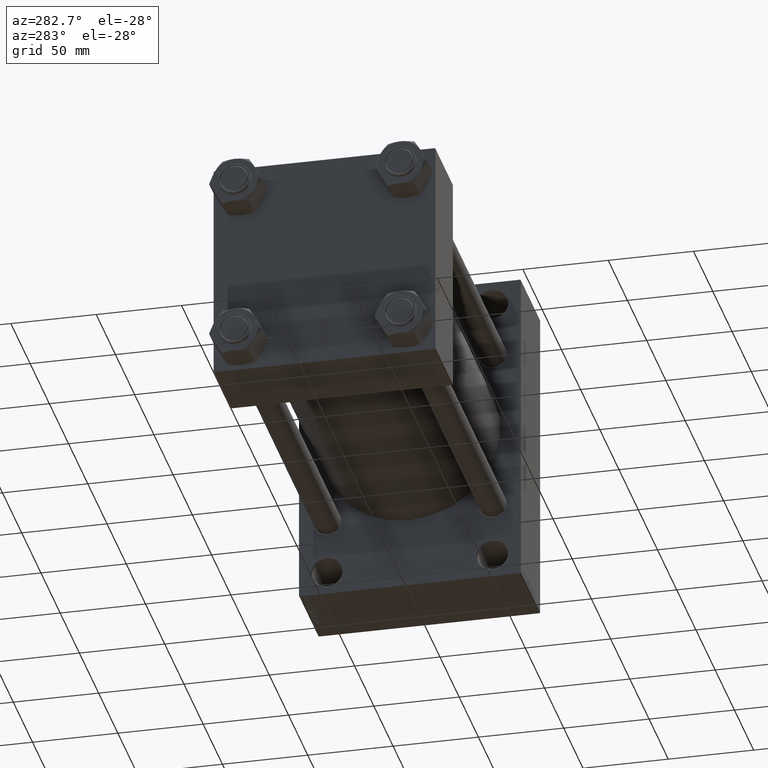
[diagram: clean part render]
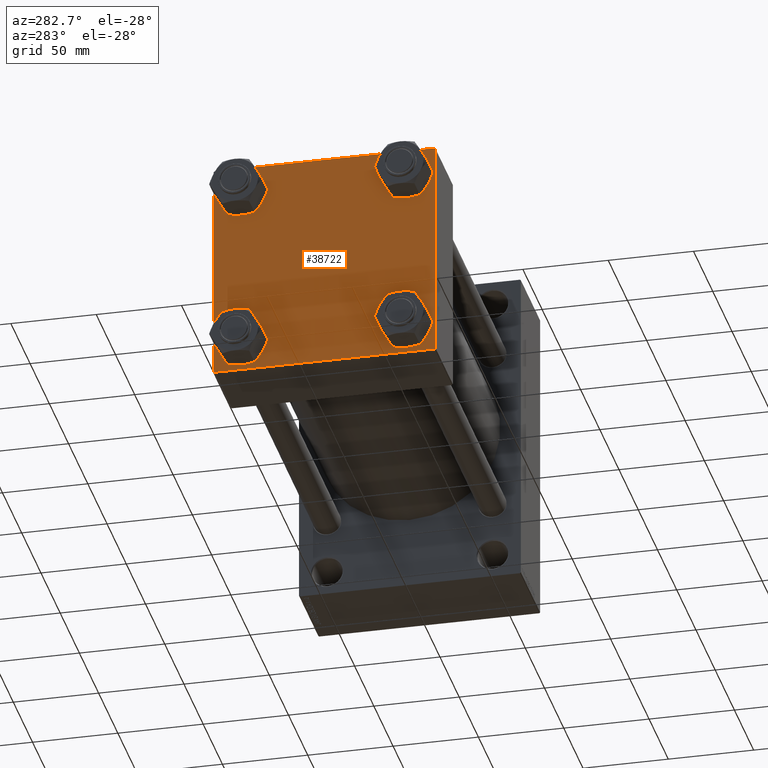
[diagram: same view with one face highlighted and labeled with its STEP entity id]
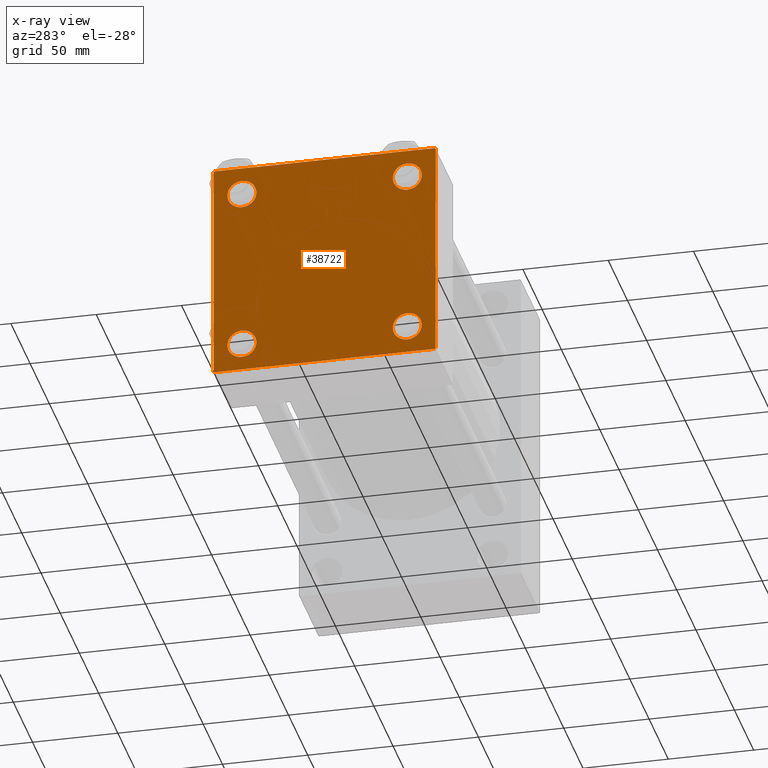
[diagram: x-ray of the same camera — body ghosted, the highlighted face saturated]
A machine part, auxiliary view. The second image highlights one B-rep face of the part: STEP entity #38722.
The next image is the same camera in x-ray: the body ghosted, the highlighted face saturated — about 0% of this face is hidden behind the body in this view.
In plain terms, the highlighted planar face has unit normal (-1, 0, 0).
Its self-contained STEP definition (entity closure, byte-faithful):
#100 = VERTEX_POINT ( 'NONE', #7290 ) ;
#126 = CARTESIAN_POINT ( 'NONE',  ( 0.000000000000000000, -48.44999999999999574, -48.45000000000003126 ) ) ;
#771 = DIRECTION ( 'NONE',  ( 0.000000000000000000, 0.000000000000000000, 1.000000000000000000 ) ) ;
#1217 = AXIS2_PLACEMENT_3D ( 'NONE', #6793, #14257, #21265 ) ;
#1656 = CIRCLE ( 'NONE', #18564, 8.500000000000007105 ) ;
#2460 = VERTEX_POINT ( 'NONE', #37429 ) ;
#2597 = ORIENTED_EDGE ( 'NONE', *, *, #33445, .T. ) ;
#2628 = EDGE_LOOP ( 'NONE', ( #27123, #4950 ) ) ;
#3049 = DIRECTION ( 'NONE',  ( 1.000000000000000000, -0.000000000000000000, 0.000000000000000000 ) ) ;
#3469 = FACE_BOUND ( 'NONE', #2628, .T. ) ;
#3698 = EDGE_CURVE ( 'NONE', #14409, #25266, #27313, .T. ) ;
#3805 = EDGE_CURVE ( 'NONE', #40340, #34486, #10114, .T. ) ;
#3814 = EDGE_CURVE ( 'NONE', #14409, #20359, #25520, .T. ) ;
#4240 = EDGE_CURVE ( 'NONE', #8730, #11387, #12992, .T. ) ;
#4527 = CARTESIAN_POINT ( 'NONE',  ( 0.000000000000000000, -65.00000000000000000, 64.50000000000000000 ) ) ;
#4950 = ORIENTED_EDGE ( 'NONE', *, *, #14866, .T. ) ;
#6104 = VERTEX_POINT ( 'NONE', #47192 ) ;
#6146 = VECTOR ( 'NONE', #9454, 1000.000000000000000 ) ;
#6349 = EDGE_LOOP ( 'NONE', ( #10600, #16194 ) ) ;
#6656 = EDGE_CURVE ( 'NONE', #25266, #28633, #10836, .T. ) ;
#6684 = DIRECTION ( 'NONE',  ( 1.000000000000000000, -0.000000000000000000, 0.000000000000000000 ) ) ;
#6793 = CARTESIAN_POINT ( 'NONE',  ( 0.000000000000000000, 48.45000000000000995, 48.45000000000001705 ) ) ;
#7024 = AXIS2_PLACEMENT_3D ( 'NONE', #12124, #23440, #771 ) ;
#7189 = CARTESIAN_POINT ( 'NONE',  ( 0.000000000000000000, 65.00000000000000000, 65.00000000000001421 ) ) ;
#7290 = CARTESIAN_POINT ( 'NONE',  ( 0.000000000000000000, -65.00000000000000000, -64.49999999999991473 ) ) ;
#7695 = DIRECTION ( 'NONE',  ( 0.000000000000000000, 0.000000000000000000, 1.000000000000000000 ) ) ;
#8238 = DIRECTION ( 'NONE',  ( -0.000000000000000000, 0.7071067811865672237, 0.7071067811865279218 ) ) ;
#8730 = VERTEX_POINT ( 'NONE', #18579 ) ;
#8956 = DIRECTION ( 'NONE',  ( -0.000000000000000000, -0.7071067811865474617, -0.7071067811865474617 ) ) ;
#9454 = DIRECTION ( 'NONE',  ( 0.000000000000000000, 0.000000000000000000, -1.000000000000000000 ) ) ;
#9731 = EDGE_CURVE ( 'NONE', #6104, #2460, #23163, .T. ) ;
#10114 = LINE ( 'NONE', #10817, #44595 ) ;
#10131 = CARTESIAN_POINT ( 'NONE',  ( 0.000000000000000000, -64.75000000000176215, -64.74999999999816680 ) ) ;
#10208 = EDGE_CURVE ( 'NONE', #21952, #30631, #1656, .T. ) ;
#10586 = CARTESIAN_POINT ( 'NONE',  ( 0.000000000000000000, 64.74999999999998579, 64.74999999999998579 ) ) ;
#10600 = ORIENTED_EDGE ( 'NONE', *, *, #9731, .T. ) ;
#10715 = FACE_BOUND ( 'NONE', #27650, .T. ) ;
#10817 = CARTESIAN_POINT ( 'NONE',  ( 0.000000000000000000, 65.00000000000000000, -64.99999999999998579 ) ) ;
#10836 = LINE ( 'NONE', #14675, #46995 ) ;
#10890 = VECTOR ( 'NONE', #41165, 1000.000000000000000 ) ;
#11220 = ORIENTED_EDGE ( 'NONE', *, *, #3814, .F. ) ;
#11359 = CIRCLE ( 'NONE', #39855, 8.500000000000007105 ) ;
#11387 = VERTEX_POINT ( 'NONE', #28604 ) ;
#11462 = VECTOR ( 'NONE', #43405, 1000.000000000000000 ) ;
#11687 = VECTOR ( 'NONE', #8956, 1000.000000000000114 ) ;
#12124 = CARTESIAN_POINT ( 'NONE',  ( 0.000000000000000000, 48.45000000000000995, -48.45000000000001705 ) ) ;
#12203 = ORIENTED_EDGE ( 'NONE', *, *, #6656, .T. ) ;
#12330 = CARTESIAN_POINT ( 'NONE',  ( 0.000000000000000000, 64.74999999999997158, -64.74999999999997158 ) ) ;
#12992 = CIRCLE ( 'NONE', #29934, 8.500000000000007105 ) ;
#13071 = VERTEX_POINT ( 'NONE', #30787 ) ;
#13210 = EDGE_CURVE ( 'NONE', #13071, #27701, #19299, .T. ) ;
#13280 = CARTESIAN_POINT ( 'NONE',  ( 0.000000000000000000, -48.44999999999999574, 48.45000000000003126 ) ) ;
#13960 = DIRECTION ( 'NONE',  ( 0.000000000000000000, -1.000000000000000000, -1.067522139062650425E-16 ) ) ;
#14147 = CARTESIAN_POINT ( 'NONE',  ( 0.000000000000000000, -48.44999999999999574, -48.45000000000003126 ) ) ;
#14257 = DIRECTION ( 'NONE',  ( 1.000000000000000000, -0.000000000000000000, 0.000000000000000000 ) ) ;
#14409 = VERTEX_POINT ( 'NONE', #44108 ) ;
#14616 = CARTESIAN_POINT ( 'NONE',  ( 0.000000000000000000, -64.49999999999997158, 65.00000000000000000 ) ) ;
#14675 = CARTESIAN_POINT ( 'NONE',  ( 0.000000000000000000, 65.00000000000000000, 65.00000000000001421 ) ) ;
#14866 = EDGE_CURVE ( 'NONE', #11387, #8730, #15523, .T. ) ;
#15522 = EDGE_CURVE ( 'NONE', #27701, #13071, #11359, .T. ) ;
#15523 = CIRCLE ( 'NONE', #31697, 8.500000000000007105 ) ;
#15931 = DIRECTION ( 'NONE',  ( 0.000000000000000000, 0.000000000000000000, 1.000000000000000000 ) ) ;
#16194 = ORIENTED_EDGE ( 'NONE', *, *, #26751, .T. ) ;
#16884 = DIRECTION ( 'NONE',  ( 1.000000000000000000, -0.000000000000000000, 0.000000000000000000 ) ) ;
#17007 = EDGE_CURVE ( 'NONE', #30631, #21952, #24318, .T. ) ;
#17377 = LINE ( 'NONE', #24853, #6146 ) ;
#17498 = VERTEX_POINT ( 'NONE', #4527 ) ;
#18169 = FACE_OUTER_BOUND ( 'NONE', #24559, .T. ) ;
#18539 = CARTESIAN_POINT ( 'NONE',  ( 0.000000000000000000, 48.45000000000000995, 48.45000000000001705 ) ) ;
#18564 = AXIS2_PLACEMENT_3D ( 'NONE', #18539, #44617, #7695 ) ;
#18579 = CARTESIAN_POINT ( 'NONE',  ( 0.000000000000000000, -48.44999999999999574, -39.95000000000001705 ) ) ;
#19299 = CIRCLE ( 'NONE', #7024, 8.500000000000007105 ) ;
#20036 = DIRECTION ( 'NONE',  ( 0.000000000000000000, 0.000000000000000000, 1.000000000000000000 ) ) ;
#20359 = VERTEX_POINT ( 'NONE', #14616 ) ;
#21174 = CARTESIAN_POINT ( 'NONE',  ( 0.000000000000000000, 48.45000000000000995, 56.95000000000002416 ) ) ;
#21265 = DIRECTION ( 'NONE',  ( 0.000000000000000000, 0.000000000000000000, 1.000000000000000000 ) ) ;
#21700 = DIRECTION ( 'NONE',  ( 0.000000000000000000, 0.000000000000000000, -1.000000000000000000 ) ) ;
#21952 = VERTEX_POINT ( 'NONE', #21174 ) ;
#22254 = DIRECTION ( 'NONE',  ( -0.000000000000000000, 0.000000000000000000, 1.000000000000000000 ) ) ;
#22453 = ORIENTED_EDGE ( 'NONE', *, *, #30713, .F. ) ;
#22934 = AXIS2_PLACEMENT_3D ( 'NONE', #13280, #16884, #20036 ) ;
#23163 = CIRCLE ( 'NONE', #45549, 8.500000000000007105 ) ;
#23305 = VECTOR ( 'NONE', #8238, 1000.000000000000000 ) ;
#23397 = DIRECTION ( 'NONE',  ( 1.000000000000000000, -0.000000000000000000, 0.000000000000000000 ) ) ;
#23440 = DIRECTION ( 'NONE',  ( 1.000000000000000000, -0.000000000000000000, 0.000000000000000000 ) ) ;
#24318 = CIRCLE ( 'NONE', #1217, 8.500000000000007105 ) ;
#24559 = EDGE_LOOP ( 'NONE', ( #12203, #42936, #28308, #2597, #22453, #42259, #11220, #33974 ) ) ;
#24853 = CARTESIAN_POINT ( 'NONE',  ( 0.000000000000000000, -65.00000000000000000, 65.00000000000000000 ) ) ;
#25266 = VERTEX_POINT ( 'NONE', #44758 ) ;
#25520 = LINE ( 'NONE', #7189, #11462 ) ;
#25532 = ORIENTED_EDGE ( 'NONE', *, *, #13210, .T. ) ;
#25870 = FACE_BOUND ( 'NONE', #6349, .T. ) ;
#25905 = EDGE_LOOP ( 'NONE', ( #38948, #31574 ) ) ;
#26333 = CARTESIAN_POINT ( 'NONE',  ( 0.000000000000000000, 48.45000000000000995, 39.95000000000000284 ) ) ;
#26751 = EDGE_CURVE ( 'NONE', #2460, #6104, #42249, .T. ) ;
#27123 = ORIENTED_EDGE ( 'NONE', *, *, #4240, .T. ) ;
#27313 = LINE ( 'NONE', #10586, #33769 ) ;
#27650 = EDGE_LOOP ( 'NONE', ( #25532, #41935 ) ) ;
#27701 = VERTEX_POINT ( 'NONE', #29396 ) ;
#28308 = ORIENTED_EDGE ( 'NONE', *, *, #3805, .T. ) ;
#28604 = CARTESIAN_POINT ( 'NONE',  ( 0.000000000000000000, -48.44999999999999574, -56.95000000000003837 ) ) ;
#28633 = VERTEX_POINT ( 'NONE', #42260 ) ;
#29032 = CARTESIAN_POINT ( 'NONE',  ( 0.000000000000000000, 0.000000000000000000, 0.000000000000000000 ) ) ;
#29396 = CARTESIAN_POINT ( 'NONE',  ( 0.000000000000000000, 48.45000000000000995, -56.95000000000002416 ) ) ;
#29494 = FACE_BOUND ( 'NONE', #25905, .T. ) ;
#29934 = AXIS2_PLACEMENT_3D ( 'NONE', #14147, #3049, #35373 ) ;
#30160 = LINE ( 'NONE', #12330, #11687 ) ;
#30631 = VERTEX_POINT ( 'NONE', #26333 ) ;
#30713 = EDGE_CURVE ( 'NONE', #17498, #100, #17377, .T. ) ;
#30787 = CARTESIAN_POINT ( 'NONE',  ( 0.000000000000000000, 48.45000000000000995, -39.95000000000000284 ) ) ;
#31288 = CARTESIAN_POINT ( 'NONE',  ( 0.000000000000000000, 64.49999999999997158, -64.99999999999998579 ) ) ;
#31574 = ORIENTED_EDGE ( 'NONE', *, *, #17007, .T. ) ;
#31697 = AXIS2_PLACEMENT_3D ( 'NONE', #126, #6684, #36098 ) ;
#32503 = AXIS2_PLACEMENT_3D ( 'NONE', #29032, #44232, #22254 ) ;
#32516 = DIRECTION ( 'NONE',  ( 0.000000000000000000, 0.7071067811865474617, -0.7071067811865474617 ) ) ;
#33445 = EDGE_CURVE ( 'NONE', #34486, #100, #43881, .T. ) ;
#33769 = VECTOR ( 'NONE', #32516, 1000.000000000000114 ) ;
#33974 = ORIENTED_EDGE ( 'NONE', *, *, #3698, .T. ) ;
#34225 = EDGE_CURVE ( 'NONE', #28633, #40340, #30160, .T. ) ;
#34486 = VERTEX_POINT ( 'NONE', #36856 ) ;
#34747 = CARTESIAN_POINT ( 'NONE',  ( 0.000000000000000000, 48.45000000000000995, -48.45000000000001705 ) ) ;
#35373 = DIRECTION ( 'NONE',  ( 0.000000000000000000, 0.000000000000000000, 1.000000000000000000 ) ) ;
#36098 = DIRECTION ( 'NONE',  ( 0.000000000000000000, 0.000000000000000000, 1.000000000000000000 ) ) ;
#36856 = CARTESIAN_POINT ( 'NONE',  ( 0.000000000000000000, -64.49999999999994316, -65.00000000000000000 ) ) ;
#37429 = CARTESIAN_POINT ( 'NONE',  ( 0.000000000000000000, -48.44999999999999574, 39.95000000000001705 ) ) ;
#38722 = ADVANCED_FACE ( 'NONE', ( #25870, #3469, #10715, #29494, #18169 ), #40605, .T. ) ;
#38948 = ORIENTED_EDGE ( 'NONE', *, *, #10208, .T. ) ;
#39855 = AXIS2_PLACEMENT_3D ( 'NONE', #34747, #23397, #15931 ) ;
#40035 = DIRECTION ( 'NONE',  ( 1.000000000000000000, -0.000000000000000000, 0.000000000000000000 ) ) ;
#40272 = DIRECTION ( 'NONE',  ( 0.000000000000000000, 0.000000000000000000, 1.000000000000000000 ) ) ;
#40340 = VERTEX_POINT ( 'NONE', #31288 ) ;
#40605 = PLANE ( 'NONE',  #32503 ) ;
#41099 = EDGE_CURVE ( 'NONE', #17498, #20359, #42894, .T. ) ;
#41165 = DIRECTION ( 'NONE',  ( 0.000000000000000000, -0.7071067811865279218, 0.7071067811865671127 ) ) ;
#41935 = ORIENTED_EDGE ( 'NONE', *, *, #15522, .T. ) ;
#42249 = CIRCLE ( 'NONE', #22934, 8.500000000000007105 ) ;
#42259 = ORIENTED_EDGE ( 'NONE', *, *, #41099, .T. ) ;
#42260 = CARTESIAN_POINT ( 'NONE',  ( 0.000000000000000000, 65.00000000000000000, -64.49999999999995737 ) ) ;
#42894 = LINE ( 'NONE', #45399, #23305 ) ;
#42936 = ORIENTED_EDGE ( 'NONE', *, *, #34225, .T. ) ;
#43405 = DIRECTION ( 'NONE',  ( 0.000000000000000000, -1.000000000000000000, -1.067522139062650425E-16 ) ) ;
#43881 = LINE ( 'NONE', #10131, #10890 ) ;
#44108 = CARTESIAN_POINT ( 'NONE',  ( 0.000000000000000000, 64.49999999999997158, 65.00000000000001421 ) ) ;
#44232 = DIRECTION ( 'NONE',  ( -1.000000000000000000, 0.000000000000000000, -0.000000000000000000 ) ) ;
#44595 = VECTOR ( 'NONE', #13960, 1000.000000000000000 ) ;
#44604 = CARTESIAN_POINT ( 'NONE',  ( 0.000000000000000000, -48.44999999999999574, 48.45000000000003126 ) ) ;
#44617 = DIRECTION ( 'NONE',  ( 1.000000000000000000, -0.000000000000000000, 0.000000000000000000 ) ) ;
#44758 = CARTESIAN_POINT ( 'NONE',  ( 0.000000000000000000, 65.00000000000000000, 64.49999999999998579 ) ) ;
#45399 = CARTESIAN_POINT ( 'NONE',  ( -0.000000000000000000, -64.74999999999819522, 64.75000000000179057 ) ) ;
#45549 = AXIS2_PLACEMENT_3D ( 'NONE', #44604, #40035, #40272 ) ;
#46995 = VECTOR ( 'NONE', #21700, 1000.000000000000000 ) ;
#47192 = CARTESIAN_POINT ( 'NONE',  ( 0.000000000000000000, -48.44999999999999574, 56.95000000000003837 ) ) ;